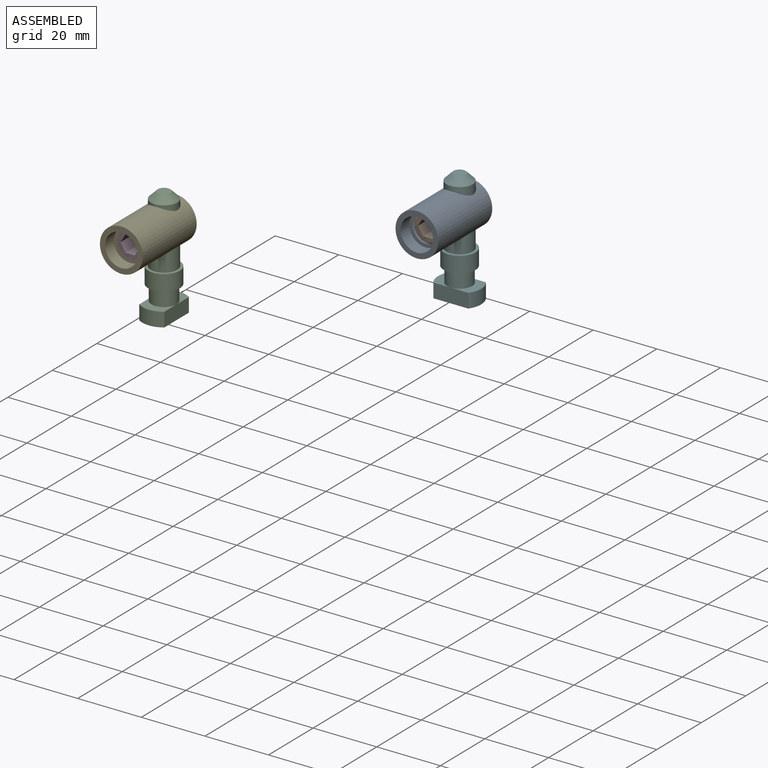
[diagram: assembled view]
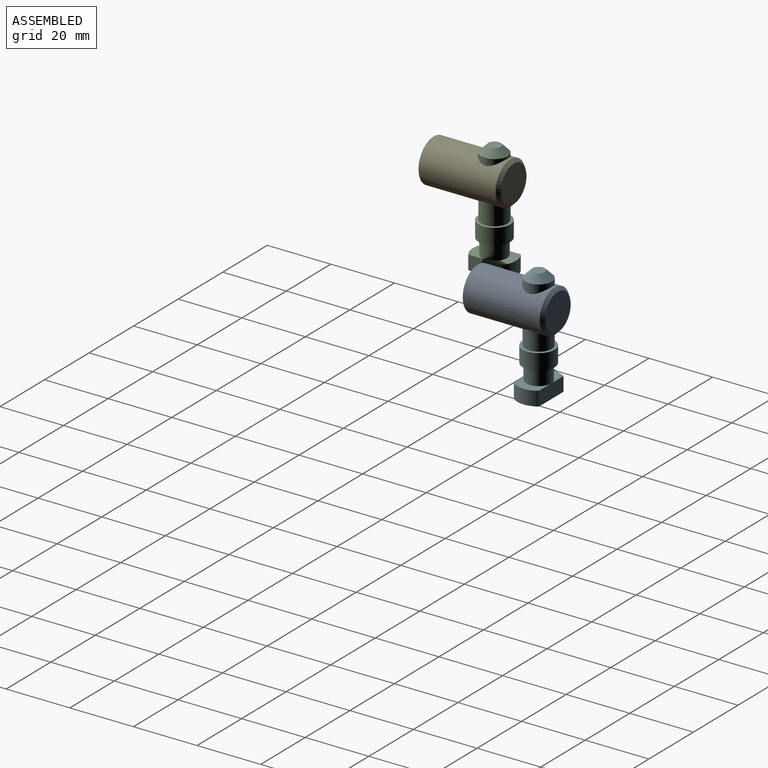
[diagram: assembled view, second angle]
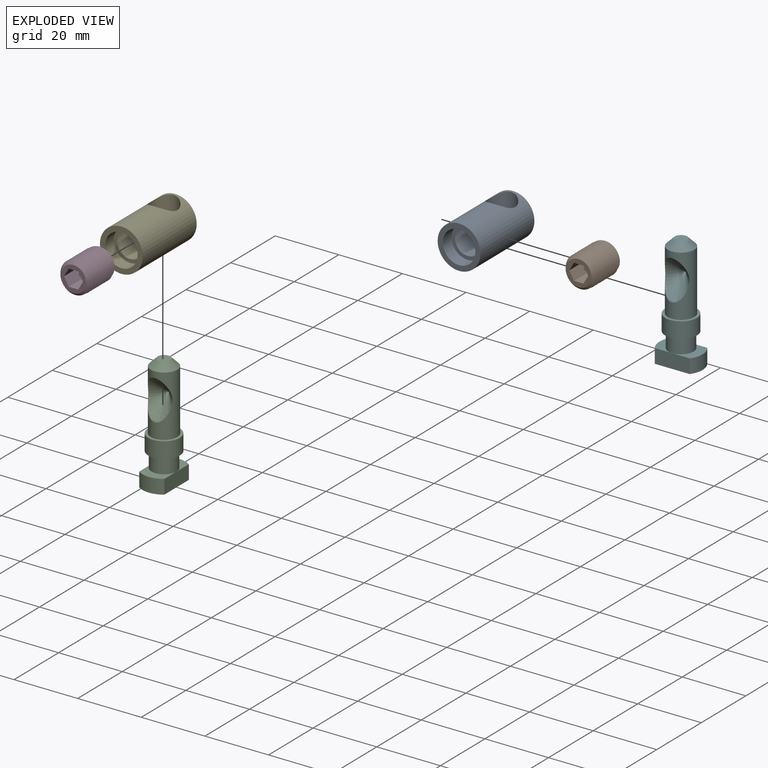
[diagram: exploded view]
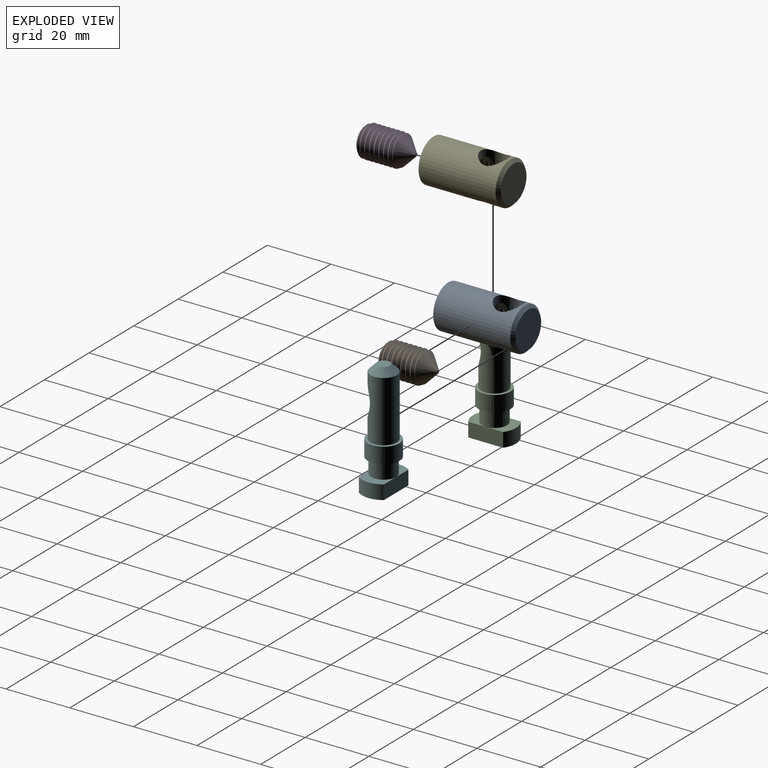
[diagram: exploded view, second angle]
ASSEMBLY  parts=6 mates=4
PART A: 17 faces, bbox 13.5x25.2x13.5 mm
  f0: cylinder r=4.25mm len=13.47mm, axis (0,0,-1), area 258.4mm2, adj f1,f7,f8,f9,f10,f11,f12,f13
  f1: cylinder r=6.73mm len=24.22mm, axis (0,1,0), area 904.6mm2, adj f0,f3,f4
  f2: cylinder r=5.11mm len=10.22mm, axis (0,1,0), area 125.9mm2, adj f3,f6
  f3: plane 13.47x13.47mm, normal (0,-1,0), area 60.5mm2, adj f1,f2
  f4: cone r=5.75mm half-angle=45deg, axis (0,-1,0), area 54.6mm2, adj f1,f5
  f5: plane 11.5x11.5mm, normal (0,1,0), area 103.9mm2, adj f4
  f6: plane 10.22x10.22mm, normal (0,-1,0), area 31.8mm2, adj f2,f16
  f7: bspline ~12.78x11.13mm, area 220mm2, adj f0,f9,f10,f16
  f8: bspline ~10.25x6.93mm, area 5.7mm2, adj f0,f9,f11,f13,f14
  f9: bspline ~11.63x9.85mm, area 220.5mm2, adj f0,f7,f8,f13,f16
  f10: bspline ~10.25x6.93mm, area 5.3mm2, adj f0,f7,f12,f15
  f11: bspline ~10.25x6.93mm, area 0.5mm2, adj f0,f8,f14
  f12: cone r=5mm half-angle=22.5deg, axis (0,-1,0), area 0mm2, adj f0,f10,f15
  f13: cone r=5mm half-angle=22.5deg, axis (0,-1,0), area 2mm2, adj f0,f8,f9,f14
  f14: cone r=5mm half-angle=45deg, axis (0,-1,0), area 5.7mm2, adj f0,f8,f11,f13
  f15: cone r=5mm half-angle=45deg, axis (0,-1,0), area 7.8mm2, adj f0,f10,f12
  f16: cone r=4mm half-angle=45deg, axis (0,1,0), area 21.3mm2, adj f6,f7,f9
PART B: 14 faces, bbox 10.8x16.7x11.1 mm
  f0: cone r=5mm half-angle=45deg, axis (0,-1,0), area 89.9mm2, adj f1,f2,f3,f4
  f1: plane 1x1mm, normal (0,1,0), area 0.8mm2, adj f0
  f2: cone r=5mm half-angle=22.5deg, axis (0,-1,0), area 2.5mm2, adj f0,f3,f4
  f3: bspline ~13.28x11.13mm, area 229.2mm2, adj f0,f2,f4,f6
  f4: bspline ~13.28x11.13mm, area 230.5mm2, adj f0,f2,f3,f6
  f5: plane 8x8mm, normal (0,-1,0), area 27.3mm2, adj f6,f7,f8,f9,f10,f11,f12
  f6: cone r=4mm half-angle=45deg, axis (0,1,0), area 21.3mm2, adj f3,f4,f5
  f7: plane 7.2x2.58mm, normal (-0.87,0,-0.5), area 21.4mm2, adj f5,f8,f12,f13
  f8: plane 7.2x2.97mm, normal (0,0,-1), area 21.4mm2, adj f5,f7,f9,f13
  f9: plane 7.2x2.58mm, normal (0.87,0,-0.5), area 21.4mm2, adj f5,f8,f10,f13
  f10: plane 7.2x2.58mm, normal (0.87,0,0.5), area 21.4mm2, adj f5,f9,f11,f13
  f11: plane 7.2x2.97mm, normal (0,0,1), area 21.4mm2, adj f5,f10,f12,f13
  f12: plane 7.2x2.58mm, normal (-0.87,0,0.5), area 21.4mm2, adj f5,f7,f11,f13
  f13: plane 5.95x5.15mm, normal (0,-1,0), area 23mm2, adj f7,f8,f9,f10,f11,f12
PART C: 14 faces, bbox 12.6x13.5x35.6 mm
  f0: plane 13.53x7.9mm, normal (0,0,-1), area 100.5mm2, adj f1,f8,f11,f12
  f1: cylinder r=6.77mm len=7.9mm, axis (0,0,-1), area 37.6mm2, adj f0,f2,f11,f12
  f2: plane 13.53x7.9mm, normal (0,0,1), area 52.1mm2, adj f1,f8,f9,f11,f12
  f3: cylinder r=5mm len=10mm, axis (0,0,-1), area 157.1mm2, adj f4,f10
  f4: plane 10x10mm, normal (0,0,1), area 24.4mm2, adj f3,f5
  f5: cylinder r=4.15mm len=19.12mm, axis (0,0,-1), area 408.9mm2, adj f4,f6,f13
  f6: cone r=4.15mm half-angle=45deg, axis (0,0,-1), area 58.7mm2, adj f5,f7
  f7: plane 4x4mm, normal (0,0,1), area 12.6mm2, adj f6
  f8: cylinder r=6.77mm len=7.9mm, axis (0,0,-1), area 37.6mm2, adj f0,f2,f11,f12
  f9: cylinder r=3.92mm len=7.85mm, axis (0,0,-1), area 120.1mm2, adj f2,f10
  f10: plane 10x10mm, normal (0,0,-1), area 30.1mm2, adj f3,f9
  f11: plane 10.98x4.46mm, normal (-1,0,0), area 49mm2, adj f0,f1,f2,f8
  f12: plane 10.98x4.46mm, normal (1,0,0), area 49mm2, adj f0,f1,f2,f8
  f13: cone r=6.29mm half-angle=45deg, axis (0,-1,0), area 107.8mm2, adj f5
PART D: same geometry as B
PART E: same geometry as A
PART F: 14 faces, bbox 13.5x10x35.6 mm
  f0: plane 13.53x7.9mm, normal (0,0,-1), area 100.5mm2, adj f1,f8,f11,f12
  f1: cylinder r=6.77mm len=7.9mm, axis (0,0,-1), area 37.6mm2, adj f0,f2,f11,f12
  f2: plane 13.53x7.9mm, normal (0,0,1), area 52.1mm2, adj f1,f8,f9,f11,f12
  f3: cylinder r=5mm len=10mm, axis (0,0,-1), area 157.1mm2, adj f4,f10
  f4: plane 10x10mm, normal (0,0,1), area 24.4mm2, adj f3,f5
  f5: cylinder r=4.15mm len=19.12mm, axis (0,0,-1), area 408.9mm2, adj f4,f6,f13
  f6: cone r=4.15mm half-angle=45deg, axis (0,0,-1), area 58.7mm2, adj f5,f7
  f7: plane 4x4mm, normal (0,0,1), area 12.6mm2, adj f6
  f8: cylinder r=6.77mm len=7.9mm, axis (0,0,-1), area 37.6mm2, adj f0,f2,f11,f12
  f9: cylinder r=3.92mm len=7.85mm, axis (0,0,-1), area 120.1mm2, adj f2,f10
  f10: plane 10x10mm, normal (0,0,-1), area 30.1mm2, adj f3,f9
  f11: plane 10.98x4.46mm, normal (0,1,0), area 49mm2, adj f0,f1,f2,f8
  f12: plane 10.98x4.46mm, normal (0,-1,0), area 49mm2, adj f0,f1,f2,f8
  f13: cone r=6.29mm half-angle=45deg, axis (0,-1,0), area 107.8mm2, adj f5
PLACE A t=(0.98,50.46,-5.03)mm
PLACE B t=(0.98,51.34,-5.09)mm
PLACE C t=(-54.83,-2.93,-4.97)mm fixed
PLACE D t=(-54.83,-2.52,-4.12)mm
PLACE E t=(-54.83,-2.52,-4.12)mm
PLACE F t=(0.98,50.05,-5.09)mm
MATE slider E.f0 <-> C.f1  axis (0,0,-1) through (-54.83,-2.93,27.98)mm
MATE fastened B.f0 <-> F.f13  axis (0,1,0) through (0.98,51.69,20.18)mm
MATE fastened D.f0 <-> E.f1  axis (0,-1,0) through (-54.83,-18.17,21.15)mm
MATE fastened A.f0 <-> F.f1  axis (0,0,-1) through (0.98,50.05,27.06)mm
